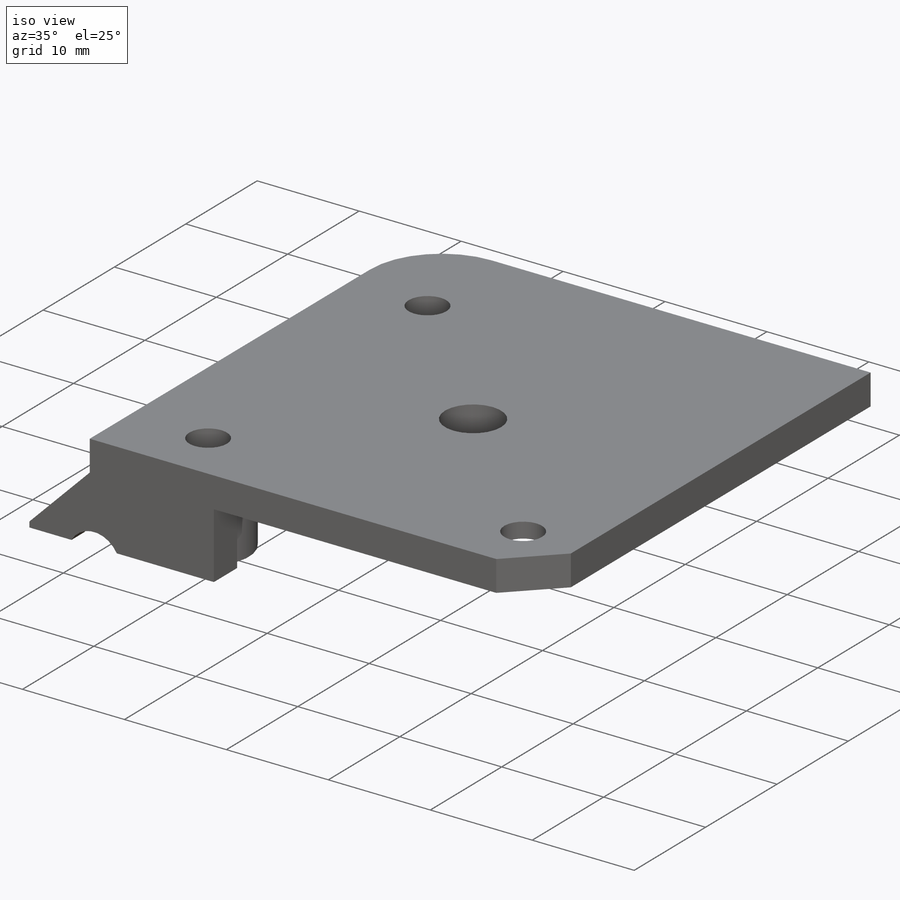
[diagram: iso view]
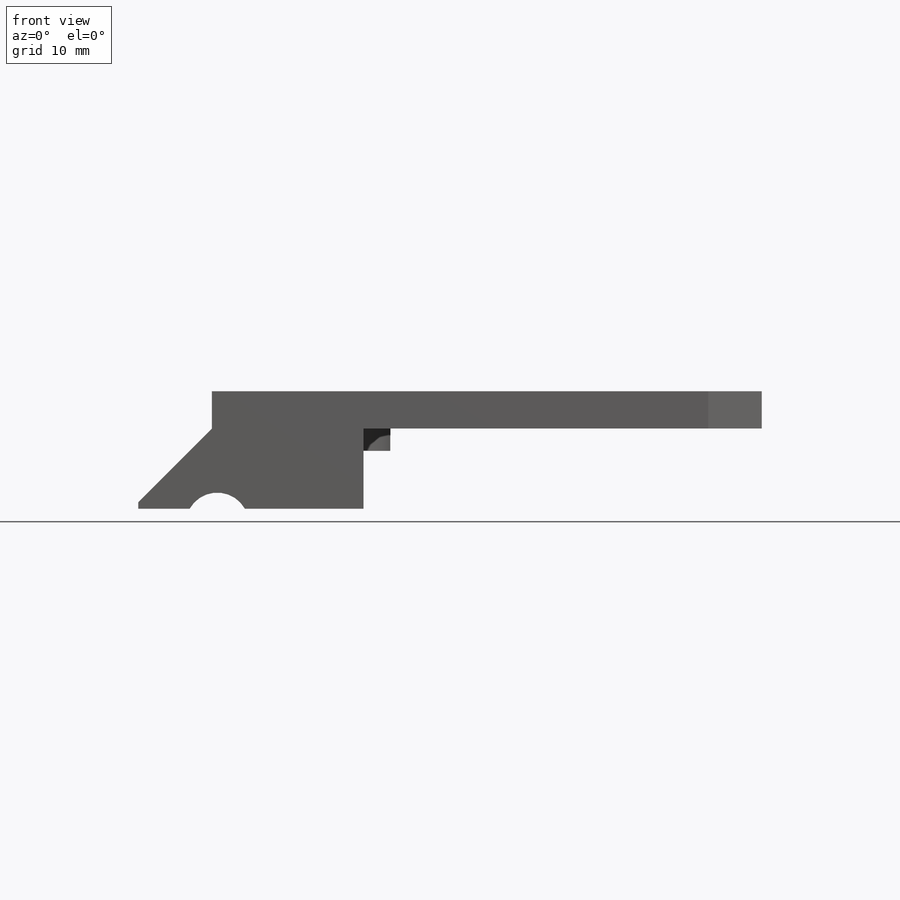
[diagram: front view]
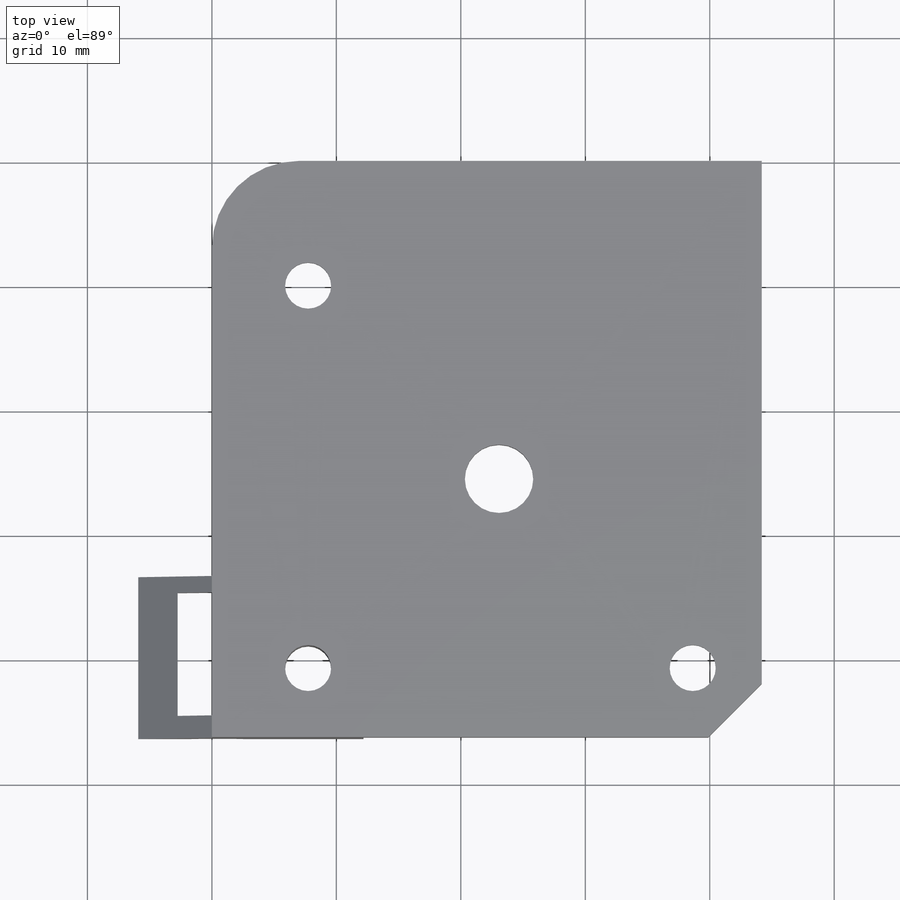
[diagram: top view]
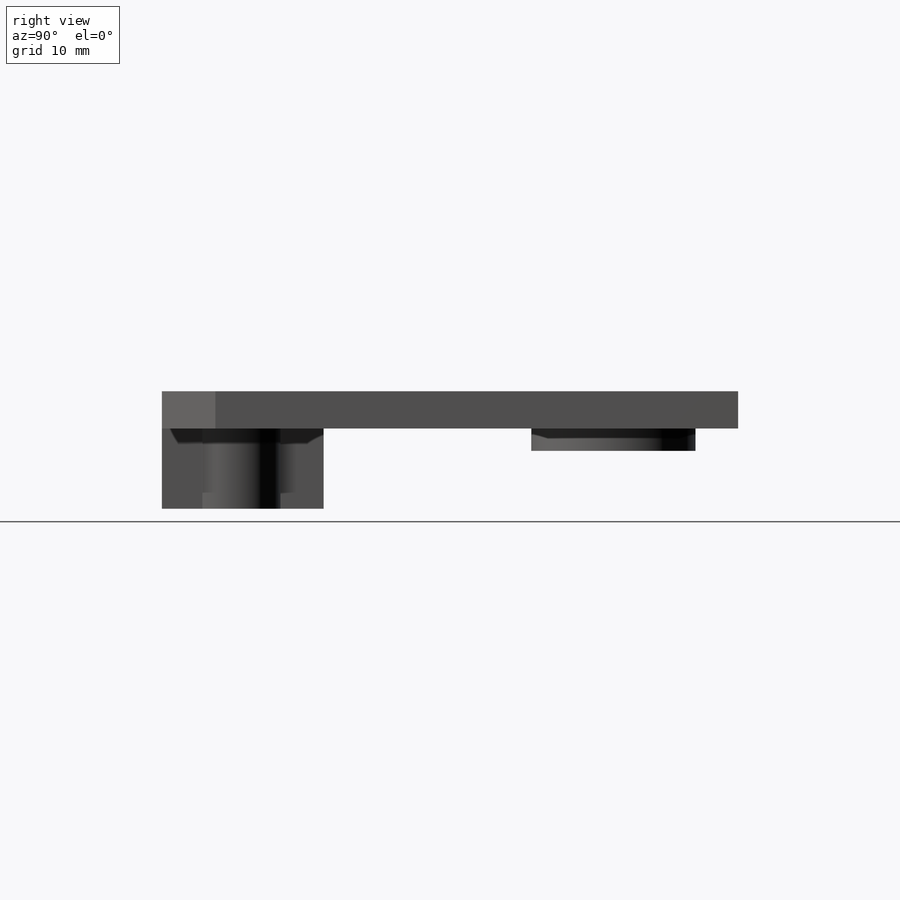
[diagram: right view]
SOLIDWORKS PART (.sldprt)
format: sldprt  version: not decoded by parser v0  size: 648,192 bytes
history: native  units: mm
features: sketch x23, extrude x8, cut_extrude x7, hole x4, material x1 (+13 scaffold rows collapsed)
feature tree (56):
  scaffold x13  (default folders/planes/origin — collapsed)
  material  "Material <not specified>"
  sketch  "Sketch1"  dims[c1.D3=7.0mm c1.D4=27.0mm c1.D8=10.66mm c1.D1=46.3mm c1.D2=44.18mm c2.D4=~6.081118mm c2.D5=7.26mm c2.D6=9.57mm]
  extrude  "Boss-Extrude1"  Depth=3mm
  hole  "Ø24.0 (24) Diameter Hole1"  Diameter=3.7mm Depth=3mm
  sketch  "Sketch4"
  sketch  "Sketch3"  dims[hole-wizard template sketch: 60 standard entries collapsed; hole parameters kept: c18.Thru Hole Depth=3.0mm]
  sketch  "Sketch6"
  extrude  "Boss-Extrude2"  [1 undecoded]
  hole  "Ø24.0 (24) Diameter Hole2"  Diameter=5.5mm Depth=3mm
  sketch  "Sketch12"
  sketch  "Sketch11"  dims[hole-wizard template sketch: 60 standard entries collapsed; hole parameters kept: c18.Thru Hole Depth=3.0mm]
  sketch  "Sketch13"  dims[D1=8.0mm]
  sketch  "Sketch14"
  extrude  "Boss-Extrude6"  [1 undecoded]
  extrude  "Boss-Extrude7"  [1 undecoded]
  sketch  "Sketch15"
  extrude  "Boss-Extrude8"  [1 undecoded]
  hole  "Ø24.0 (24) Diameter Hole3"  Diameter=3.7mm Depth=9.45mm
  sketch  "Sketch17"
  sketch  "Sketch16"  dims[hole-wizard template sketch: 60 standard entries collapsed; hole parameters kept: c18.Thru Hole Depth=9.45mm]
  sketch  "Sketch18"
  cut_extrude  "Cut-Extrude3"  [1 undecoded]
  sketch  "Sketch19"
  cut_extrude  "Cut-Extrude4"  [1 undecoded]
  sketch  "Sketch23"  dims[D1=4.2mm]
  cut_extrude  "Cut-Extrude5"  [1 undecoded]
  sketch  "Sketch24"
  cut_extrude  "Cut-Extrude6"  Depth=10mm
  sketch  "Cavity27"
  extrude  "e3d extruder<1>@rezanje poklopca assembly3"  [1 undecoded]
  sketch  "Sketch25"  dims[D1=13.2mm]
  extrude  "Boss-Extrude9"  Depth=1.8mm
  sketch  "Sketch26"  dims[D1=9.0mm]
  cut_extrude  "Cut-Extrude7"  Depth=3mm
  sketch  "Sketch27"
  extrude  "Boss-Extrude10"  [1 undecoded]
  sketch  "Sketch28"
  cut_extrude  "Cut-Extrude8"  [1 undecoded]
  sketch  "Sketch29"
  cut_extrude  "Cut-Extrude9"  Depth=15mm
  hole  "Ø24.0 (24) Diameter Hole4"  Diameter=3.4mm Depth=9.45mm
  sketch  "Sketch31"
  sketch  "Sketch30"  dims[hole-wizard template sketch: 60 standard entries collapsed; hole parameters kept: c18.Thru Hole Depth=9.45mm]
decode coverage: 18 of 42 modeling features carry decoded parameters
note: ~ marks probable driven/reference dimensions
note: 10 parameter values undecoded
summary: no parameter record found for 10 features; Diameter pulled from absorbed wizard sketch
note: suppression state not decoded; provenance and decode notes live in map.json
